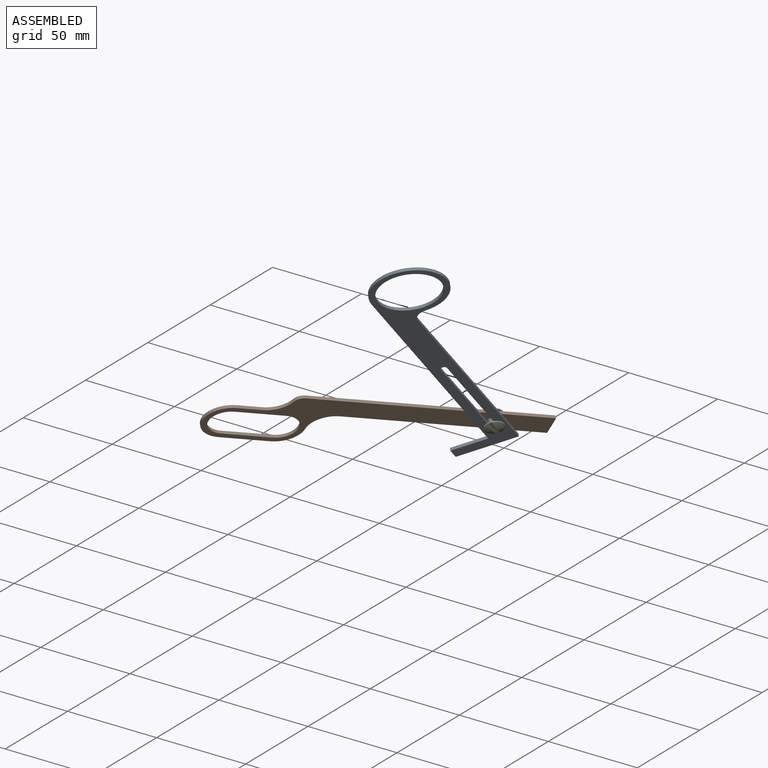
[diagram: assembled view]
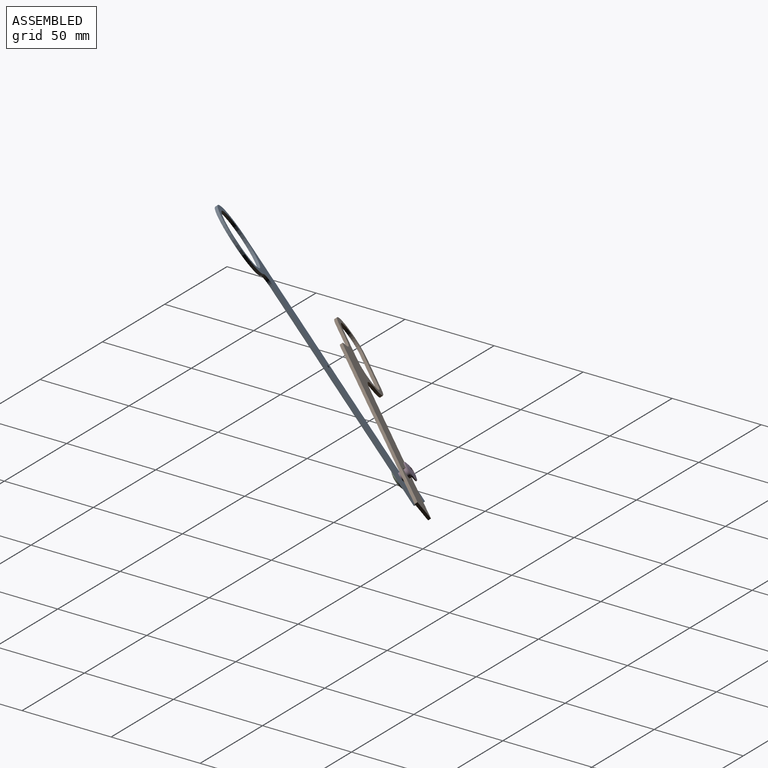
[diagram: assembled view, second angle]
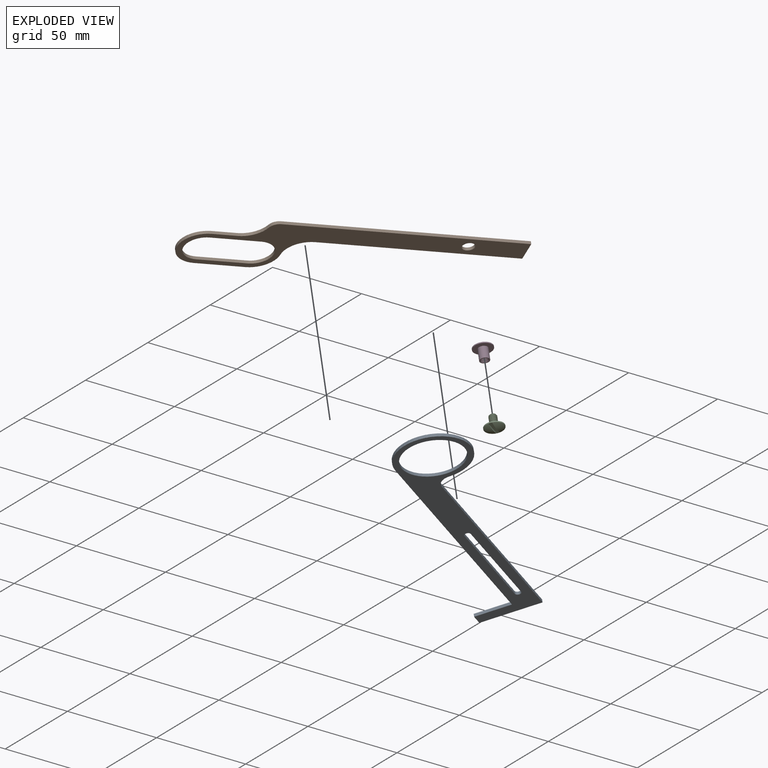
[diagram: exploded view]
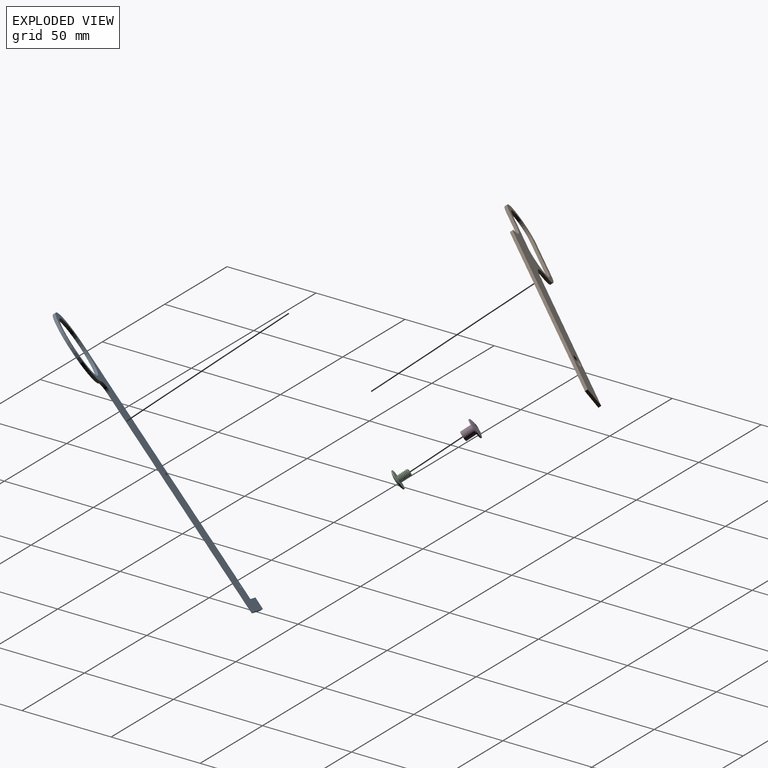
[diagram: exploded view, second angle]
ASSEMBLY  parts=4 mates=6
PART A: 14 faces, bbox 1.6x165.1x57.2 mm
  f0: plane 139.7x1.59mm, normal (0,0,-1), area 221.8mm2, adj f1,f5,f6,f7
  f1: plane 19.05x1.59mm, normal (0,-1,0), area 30.2mm2, adj f0,f2,f5,f6
  f2: plane 6.35x1.59mm, normal (0,0,-1), area 10.1mm2, adj f1,f3,f5,f6
  f3: plane 31.75x1.59mm, normal (0,1,0), area 50.4mm2, adj f2,f4,f5,f6
  f4: plane 120.65x1.59mm, normal (0,0,1), area 191.5mm2, adj f3,f5,f6,f8
  f5: plane 165.1x57.15mm, normal (1,0,0), area 1969.3mm2, adj f0,f1,f2,f3,f4,f7,f8,f9
  f6: plane 165.1x57.15mm, normal (-1,0,0), area 1969.3mm2, adj f0,f1,f2,f3,f4,f7,f8,f9
  f7: cylinder r=19.05mm len=38.1mm, axis (-1,0,0), area 142.5mm2, adj f0,f5,f6,f8
  f8: cylinder r=6.35mm len=6.35mm, axis (1,0,0), area 15.8mm2, adj f4,f5,f6,f7
  f9: cylinder r=15.88mm len=31.75mm, axis (1,0,0), area 158.3mm2, adj f5,f6
  f10: plane 60.33x1.59mm, normal (0,0,1), area 95.8mm2, adj f5,f6,f12,f13
  f11: plane 60.33x1.59mm, normal (0,0,-1), area 95.8mm2, adj f5,f6,f12,f13
  f12: cylinder r=1.59mm len=3.18mm, axis (1,0,0), area 7.9mm2, adj f5,f6,f10,f11
  f13: cylinder r=1.59mm len=3.18mm, axis (-1,0,0), area 7.9mm2, adj f5,f6,f10,f11
PART B: 17 faces, bbox 1.6x165.1x38.1 mm
  f0: plane 122.66x1.59mm, normal (0,0,1), area 194.7mm2, adj f1,f2,f5,f11
  f1: plane 165.1x38.1mm, normal (1,0,0), area 2064.7mm2, adj f0,f3,f4,f5,f6,f7,f8,f9
  f2: plane 165.1x38.1mm, normal (-1,0,0), area 2064.7mm2, adj f0,f3,f4,f5,f6,f7,f8,f9
  f3: plane 25.4x1.59mm, normal (0,0,-1), area 40.3mm2, adj f1,f2,f8,f10
  f4: plane 101.6x1.59mm, normal (0,0,-1), area 161.3mm2, adj f1,f2,f5,f9
  f5: plane 12.7x1.59mm, normal (0,1,0), area 20.2mm2, adj f0,f1,f2,f4
  f6: plane 12.7x1.59mm, normal (0,0,1), area 20.2mm2, adj f1,f2,f7,f8
  f7: cylinder r=12.7mm len=12.17mm, axis (-1,0,0), area 25.8mm2, adj f1,f2,f6,f11
  f8: cylinder r=12.7mm len=25.4mm, axis (-1,0,0), area 63.3mm2, adj f1,f2,f3,f6
  f9: cylinder r=12.7mm len=12.7mm, axis (1,0,0), area 31.7mm2, adj f1,f2,f4,f10
  f10: cylinder r=12.7mm len=12.7mm, axis (-1,0,0), area 31.7mm2, adj f1,f2,f3,f9
  f11: cylinder r=5.08mm len=4.87mm, axis (-1,0,0), area 10.3mm2, adj f0,f1,f2,f7
  f12: cylinder r=9.53mm len=19.05mm, axis (1,0,0), area 47.5mm2, adj f1,f2,f14,f15
  f13: cylinder r=9.53mm len=19.05mm, axis (1,0,0), area 47.5mm2, adj f1,f2,f14,f15
  f14: plane 25.4x1.59mm, normal (0,0,-1), area 40.3mm2, adj f1,f2,f12,f13
  f15: plane 25.4x1.59mm, normal (0,0,1), area 40.3mm2, adj f1,f2,f12,f13
  f16: cylinder r=3.17mm len=6.35mm, axis (1,0,0), area 31.7mm2, adj f1,f2
PART C: 13 faces, bbox 8.5x10.6x10.6 mm
  f0: plane 10.63x10.63mm, normal (-1,0,0), area 73.1mm2, adj f3,f7,f10,f11,f12
  f1: sphere r=13.68mm, area 33.5mm2, adj f3,f4
  f2: sphere r=13.68mm, area 33.5mm2, adj f3,f5
  f3: cylinder r=5.16mm len=10.32mm, axis (-1,0,0), area 18.7mm2, adj f0,f1,f2,f6
  f4: plane 10.15x0.98mm, normal (0,-1,0), area 6.7mm2, adj f1,f6
  f5: plane 10.15x0.98mm, normal (0,1,0), area 6.7mm2, adj f2,f6
  f6: plane 10.32x1.87mm, normal (1,0,0), area 19.2mm2, adj f3,f4,f5
  f7: cylinder r=2.08mm len=5.75mm, axis (-1,0,0), area 9.4mm2, adj f0,f9,f10,f11
  f8: plane 2.98x2.98mm, normal (-1,0,0), area 7mm2, adj f9
  f9: cone r=2.08mm half-angle=45deg, axis (1,0,0), area 5.1mm2, adj f7,f8,f10,f11,f12
  f10: bspline ~7.04x4.17mm, area 51.8mm2, adj f0,f7,f9,f12
  f11: bspline ~6.75x4.17mm, area 51.6mm2, adj f0,f7,f9,f12
  f12: bspline ~6.55x3.13mm, area 7.7mm2, adj f0,f9,f10,f11
PART D: 10 faces, bbox 8.5x10.3x10.3 mm
  f0: cylinder r=2.58mm len=6.35mm, axis (1,0,0), area 102.9mm2, adj f5,f9
  f1: bspline ~8.53x4.17mm, area 65.2mm2, adj f3,f4,f6,f7
  f2: bspline ~8.14x4.17mm, area 65.2mm2, adj f3,f4,f6,f7
  f3: bspline ~7.64x3.13mm, area 9mm2, adj f1,f2,f6,f7
  f4: cylinder r=2.08mm len=7.78mm, axis (1,0,0), area 12.7mm2, adj f1,f2,f5,f6
  f5: plane 5.16x5.16mm, normal (1,0,0), area 7.3mm2, adj f0,f4,f7
  f6: sphere r=13.68mm, area 76.2mm2, adj f1,f2,f3,f4,f8
  f7: cone r=2.08mm half-angle=45deg, axis (1,0,0), area 4.3mm2, adj f1,f2,f3,f5
  f8: cylinder r=5.16mm len=10.32mm, axis (1,0,0), area 18.7mm2, adj f6,f9
  f9: plane 10.32x10.32mm, normal (1,0,0), area 62.7mm2, adj f0,f8
PLACE A rot(axis=(-0.62,0.72,-0.32),71.7deg) t=(-37.29,50.38,-13)mm
PLACE B rot(axis=(0,0.67,-0.74),55deg) t=(-84.03,54.42,-60.54)mm
PLACE C rot(axis=(0.57,0.3,-0.77),68.2deg) t=(-30.37,91.5,-42.67)mm
PLACE D rot(axis=(-0.62,0.72,-0.32),71.7deg) t=(-23.09,83.78,-49.64)mm
MATE fastened C.f3 <-> D.f0  axis (-0.57,0.61,0.55) through (-26.73,87.64,-46.15)mm
MATE cylindrical D.f0 <-> C.f3  axis (0.57,-0.61,-0.55) through (-26.73,87.64,-46.15)mm
MATE cylindrical C.f3 <-> B.f16  axis (-0.57,0.61,0.55) through (-26.73,87.64,-46.15)mm
MATE revolute C.f3 <-> A.f13  axis (-0.57,0.61,0.55) through (-26.73,87.64,-46.15)mm
MATE slider C.f3 <-> D.f0  axis (-0.57,0.61,0.55) through (-30.37,91.5,-42.67)mm
MATE revolute D.f0 <-> B.f16  axis (0.57,-0.61,-0.55) through (-28.55,89.57,-44.41)mm
